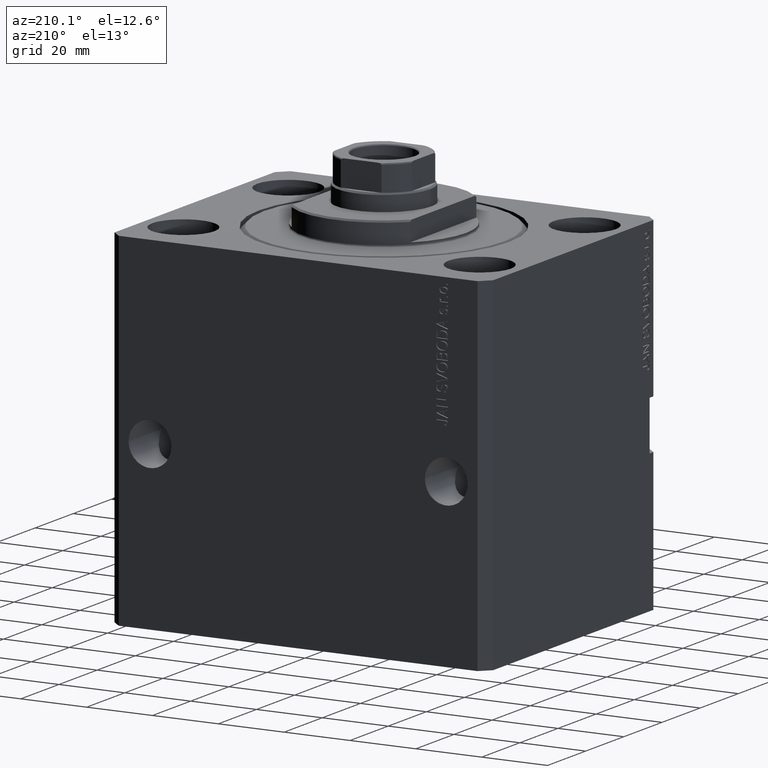
[diagram: clean part render]
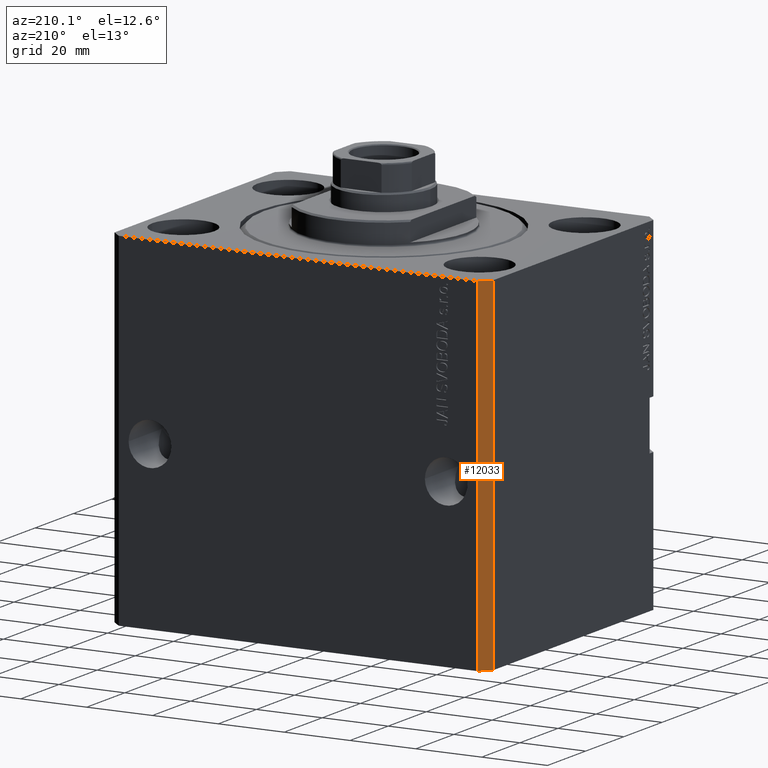
[diagram: same view with one face highlighted and labeled with its STEP entity id]
A machine part, auxiliary view. The second image highlights one B-rep face of the part: STEP entity #12033.
In plain terms, the highlighted planar face has unit normal (-0.7071, 0.7071, 0).
Its self-contained STEP definition (entity closure, byte-faithful):
#773 = CARTESIAN_POINT ( 'NONE',  ( -54.49999999999999289, 45.00000000000000000, 0.000000000000000000 ) ) ;
#3580 = DIRECTION ( 'NONE',  ( -0.7071067811865483499, -0.7071067811865466846, 0.000000000000000000 ) ) ;
#4299 = ORIENTED_EDGE ( 'NONE', *, *, #19768, .T. ) ;
#6898 = VECTOR ( 'NONE', #44922, 1000.000000000000000 ) ;
#8121 = EDGE_LOOP ( 'NONE', ( #11736, #22535, #4299, #34516 ) ) ;
#8864 = VECTOR ( 'NONE', #36891, 1000.000000000000000 ) ;
#10276 = VECTOR ( 'NONE', #3580, 1000.000000000000000 ) ;
#11736 = ORIENTED_EDGE ( 'NONE', *, *, #15606, .F. ) ;
#12033 = ADVANCED_FACE ( 'NONE', ( #24902 ), #27071, .T. ) ;
#13149 = DIRECTION ( 'NONE',  ( -0.7071067811865483499, -0.7071067811865465735, 0.000000000000000000 ) ) ;
#13589 = CARTESIAN_POINT ( 'NONE',  ( -54.49999999999999289, 45.00000000000000000, 0.000000000000000000 ) ) ;
#15321 = LINE ( 'NONE', #25999, #8864 ) ;
#15606 = EDGE_CURVE ( 'NONE', #28241, #43901, #35393, .T. ) ;
#19457 = CARTESIAN_POINT ( 'NONE',  ( -54.49999999999999289, 45.00000000000000000, -105.0000000000000000 ) ) ;
#19768 = EDGE_CURVE ( 'NONE', #27967, #42460, #15321, .T. ) ;
#20880 = EDGE_CURVE ( 'NONE', #27967, #28241, #43548, .T. ) ;
#22039 = AXIS2_PLACEMENT_3D ( 'NONE', #24055, #30772, #13149 ) ;
#22535 = ORIENTED_EDGE ( 'NONE', *, *, #20880, .F. ) ;
#24055 = CARTESIAN_POINT ( 'NONE',  ( -54.49999999999999289, 45.00000000000000000, -105.0000000000000000 ) ) ;
#24902 = FACE_OUTER_BOUND ( 'NONE', #8121, .T. ) ;
#25238 = CARTESIAN_POINT ( 'NONE',  ( -54.49999999999999289, 45.00000000000000000, -105.0000000000000000 ) ) ;
#25999 = CARTESIAN_POINT ( 'NONE',  ( -54.49999999999999289, 45.00000000000000000, -105.0000000000000000 ) ) ;
#26571 = CARTESIAN_POINT ( 'NONE',  ( -57.49999999999998579, 42.00000000000000711, -105.0000000000000000 ) ) ;
#27071 = PLANE ( 'NONE',  #22039 ) ;
#27967 = VERTEX_POINT ( 'NONE', #19457 ) ;
#28241 = VERTEX_POINT ( 'NONE', #13589 ) ;
#30751 = CARTESIAN_POINT ( 'NONE',  ( -57.49999999999998579, 42.00000000000000711, -105.0000000000000000 ) ) ;
#30772 = DIRECTION ( 'NONE',  ( -0.7071067811865466846, 0.7071067811865484609, 0.000000000000000000 ) ) ;
#32210 = EDGE_CURVE ( 'NONE', #42460, #43901, #37948, .T. ) ;
#34516 = ORIENTED_EDGE ( 'NONE', *, *, #32210, .T. ) ;
#35393 = LINE ( 'NONE', #773, #10276 ) ;
#36891 = DIRECTION ( 'NONE',  ( -0.7071067811865483499, -0.7071067811865466846, 0.000000000000000000 ) ) ;
#37948 = LINE ( 'NONE', #30751, #6898 ) ;
#39385 = DIRECTION ( 'NONE',  ( 0.000000000000000000, 0.000000000000000000, 1.000000000000000000 ) ) ;
#42460 = VERTEX_POINT ( 'NONE', #26571 ) ;
#43548 = LINE ( 'NONE', #25238, #44489 ) ;
#43901 = VERTEX_POINT ( 'NONE', #45737 ) ;
#44489 = VECTOR ( 'NONE', #39385, 1000.000000000000000 ) ;
#44922 = DIRECTION ( 'NONE',  ( 0.000000000000000000, 0.000000000000000000, 1.000000000000000000 ) ) ;
#45737 = CARTESIAN_POINT ( 'NONE',  ( -57.49999999999998579, 42.00000000000000711, 0.000000000000000000 ) ) ;